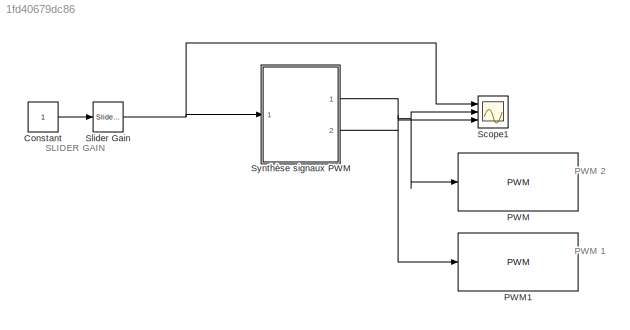
MODEL slx_1fd40679dc86
KIND model
CONFIG AbsTol = auto
CONFIG EnableMultiTasking = on
CONFIG FixedStep = auto
CONFIG MaxStep = auto
CONFIG MinStep = auto
CONFIG RelTol = 1e-3
CONFIG SampleTimeConstraint = Unconstrained
CONFIG SolverName = FixedStepAuto
CONFIG StartTime = 0.0
CONFIG StopTime = inf
BLOCK [Constant] Constant
BLOCK [Reference] PWM  REF=arduinolib/PWM
  Ports = [1]
  SourceBlock = arduinolib/PWM
  SourceProductBaseCode = ARDUINO
  SourceType = Arduino PWM
BLOCK [Reference] PWM1  REF=arduinolib/PWM
  Ports = [1]
  SourceBlock = arduinolib/PWM
  SourceProductBaseCode = ARDUINO
  SourceType = Arduino PWM
BLOCK [Scope] Scope1
  Floating = off
  NumInputPorts = 3
  Ports = [3]
  ScopeSpecificationString = Simulink.scopes.TimeScopeBlockCfg('CurrentConfiguration', extmgr.ConfigurationSet(extmgr.Configuration('Core','General UI',true),extmgr.Configuration('Core','Source UI',true),extmgr.Configuration('Sources','WiredSimulink',true,'DataLoggingVariableName','ScopeData1'),extmgr.Configuration('Visuals','Time Domain',true,'SerializedDisplays',{struct('MinYLimReal','-31.875','MaxYLimReal','286.875','YLabe...<+1638ch>
BLOCK [Reference] Slider Gain  REF=simulink/Math
Operations/Slider
Gain
  Ports = [1, 1]
  SourceBlock = simulink/Math\nOperations/Slider\nGain
  SourceProductBaseCode = SL
  SourceType = Slider Gain
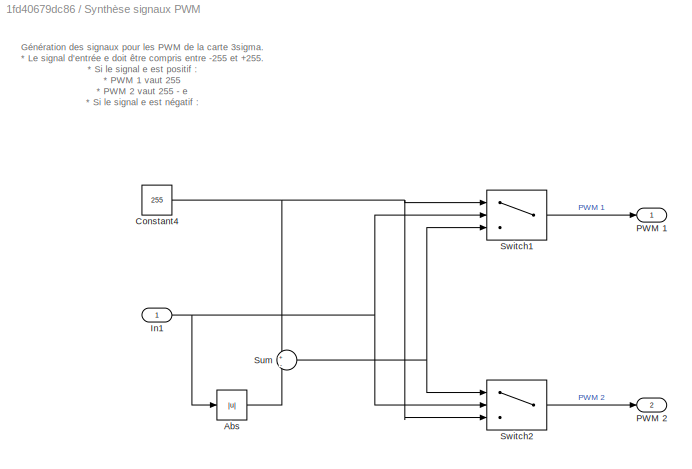
BLOCK [SubSystem] Synthèse signaux PWM
  Ports = [1, 2]
  RequestExecContextInheritance = off
BLOCK [Abs] Synthèse signaux PWM/Abs
  SaturateOnIntegerOverflow = off
BLOCK [Constant] Synthèse signaux PWM/Constant4
  Value = 255
BLOCK [Inport] Synthèse signaux PWM/In1
BLOCK [Outport] Synthèse signaux PWM/PWM 1
BLOCK [Outport] Synthèse signaux PWM/PWM 2
  Port = 2
BLOCK [Sum] Synthèse signaux PWM/Sum
  Inputs = +|-
  Ports = [2, 1]
BLOCK [Switch] Synthèse signaux PWM/Switch1
  Criteria = u2 > Threshold
  InputSameDT = off
  SaturateOnIntegerOverflow = off
BLOCK [Switch] Synthèse signaux PWM/Switch2
  Criteria = u2 > Threshold
  InputSameDT = off
  SaturateOnIntegerOverflow = off
ANNOTATION (root): PWM 1
ANNOTATION (root): PWM 2
ANNOTATION (root): SLIDER GAIN
ANNOTATION Synthèse signaux PWM: Génération des signaux pour les PWM de la carte 3sigma. * Le signal d'entrée e doit être compris entre -255 et +255. * Si le signal e est positif : * PWM 1 vaut 255 * PWM 2 vaut 255 - e * Si le signal e est négatif : * PWM 1 vaut 255 - |e| * PWM 2 vaut 255
LINE Constant:1 -> Slider Gain:1
NET Slider Gain:1 -> Scope1:1, Synthèse signaux PWM:1
LINE Synthèse signaux PWM/Abs:1 -> Synthèse signaux PWM/Sum:2
NET Synthèse signaux PWM/Constant4:1 -> Synthèse signaux PWM/Sum:1, Synthèse signaux PWM/Switch1:1, Synthèse signaux PWM/Switch2:3
NET Synthèse signaux PWM/In1:1 -> Synthèse signaux PWM/Abs:1, Synthèse signaux PWM/Switch1:2, Synthèse signaux PWM/Switch2:2
NET Synthèse signaux PWM/Sum:1 -> Synthèse signaux PWM/Switch1:3, Synthèse signaux PWM/Switch2:1
LINE Synthèse signaux PWM/Switch1:1 -> Synthèse signaux PWM/PWM 1:1
LINE Synthèse signaux PWM/Switch2:1 -> Synthèse signaux PWM/PWM 2:1
NET Synthèse signaux PWM:1 -> PWM:1, Scope1:2
NET Synthèse signaux PWM:2 -> PWM1:1, Scope1:3
note: NET lines group one-source signal fan-out (src -> all destinations, sorted); 1:1 wires keep LINE
